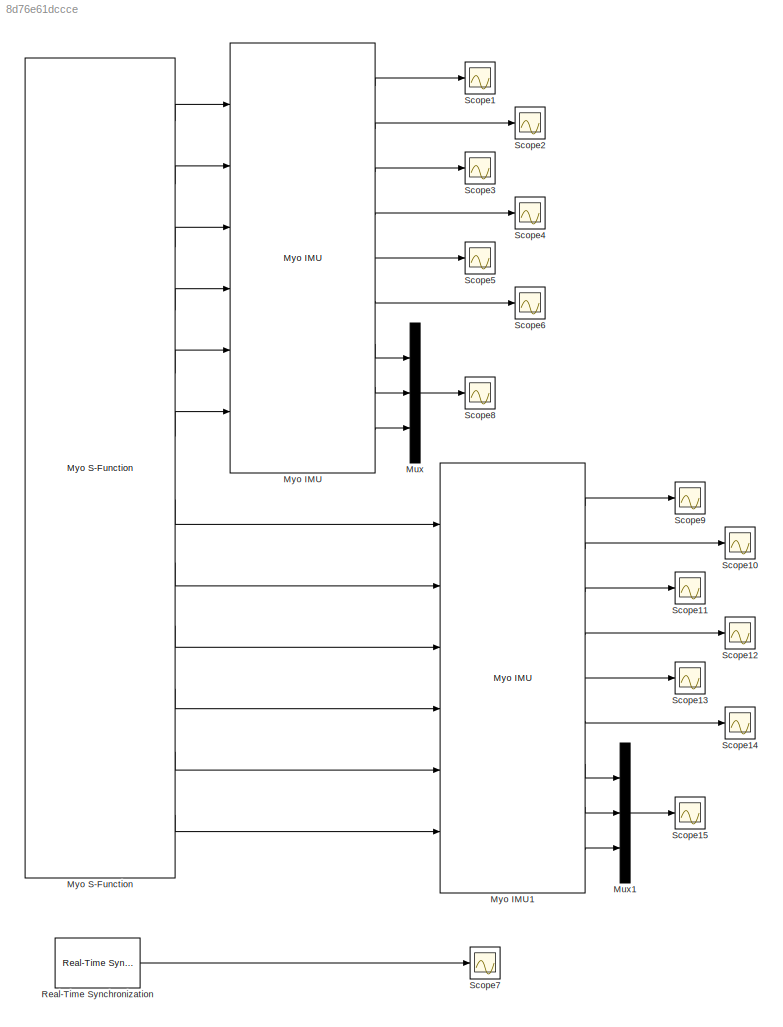
MODEL slx_8d76e61dccce
KIND model
BLOCK [Mux] Mux
  DisplayOption = bar
  Inputs = 3
  Ports = [3, 1]
BLOCK [Mux] Mux1
  DisplayOption = bar
  Inputs = 3
  Ports = [3, 1]
BLOCK [Reference] Myo IMU  REF=myo_lib/Myo IMU  (lib defined in slx_a57fffc76f72)
  Ports = [6, 9]
  SourceBlock = myo_lib/Myo IMU
  SourceType = SubSystem
BLOCK [Reference] Myo IMU1  REF=myo_lib/Myo IMU  (lib defined in slx_a57fffc76f72)
  Ports = [6, 9]
  SourceBlock = myo_lib/Myo IMU
  SourceType = SubSystem
BLOCK [Reference] Myo S-Function  REF=myo_lib/Myo S-Function  (lib defined in slx_a57fffc76f72)
  Ports = [0, 12]
  SourceBlock = myo_lib/Myo S-Function
  countMyos = 2
  emgEnabled = 0
BLOCK [Reference] Real-Time Synchronization  REF=rtwinlib/Real-Time
Synchronization
  MaxMissedTicks = 50
  Ports = [0, 1]
  SampleTime = 0.04
  ShowMissedTicks = on
  SourceBlock = rtwinlib/Real-Time\nSynchronization
  SourceType = RTWin Real-Time Synchronization
  YieldWhenWaiting = on
BLOCK [Scope] Scope1
  DataFormat = StructureWithTime
  Floating = off
  NumInputPorts = 1
  Ports = [1]
  SampleTime = 0
  ShowLegends = off
  TimeRange = 10
  YMax = 150
  YMin = -150
  ZoomMode = yonly
BLOCK [Scope] Scope10
  DataFormat = StructureWithTime
  Floating = off
  NumInputPorts = 1
  Ports = [1]
  SampleTime = 0
  SaveName = ScopeData8
  ShowLegends = off
  TimeRange = 10
  YMax = 150
  YMin = -150
  ZoomMode = yonly
BLOCK [Scope] Scope11
  DataFormat = StructureWithTime
  Floating = off
  NumInputPorts = 1
  Ports = [1]
  SampleTime = 0
  SaveName = ScopeData9
  ShowLegends = off
  TimeRange = 10
  YMax = 150
  YMin = -150
  ZoomMode = yonly
BLOCK [Scope] Scope12
  DataFormat = StructureWithTime
  Floating = off
  NumInputPorts = 1
  Ports = [1]
  SampleTime = 0
  SaveName = ScopeData10
  ShowLegends = off
  TimeRange = 10
  YMax = 150
  YMin = -150
  ZoomMode = yonly
BLOCK [Scope] Scope13
  DataFormat = StructureWithTime
  Floating = off
  NumInputPorts = 1
  Ports = [1]
  SampleTime = 0
  SaveName = ScopeData11
  ShowLegends = off
  TimeRange = 10
  YMax = 150
  YMin = -150
  ZoomMode = yonly
BLOCK [Scope] Scope14
  DataFormat = StructureWithTime
  Floating = off
  NumInputPorts = 1
  Ports = [1]
  SampleTime = 0
  SaveName = ScopeData12
  ShowLegends = off
  TimeRange = 10
  YMax = 150
  YMin = -150
  ZoomMode = yonly
BLOCK [Scope] Scope15
  DataFormat = StructureWithTime
  Floating = off
  NumInputPorts = 1
  Ports = [1]
  SampleTime = 0
  SaveName = ScopeData13
  ShowLegends = off
  TimeRange = 10
  YMax = 150
  YMin = -150
  ZoomMode = yonly
BLOCK [Scope] Scope2
  DataFormat = StructureWithTime
  Floating = off
  NumInputPorts = 1
  Ports = [1]
  SampleTime = 0
  SaveName = ScopeData1
  ShowLegends = off
  TimeRange = 10
  YMax = 150
  YMin = -150
  ZoomMode = yonly
BLOCK [Scope] Scope3
  DataFormat = StructureWithTime
  Floating = off
  NumInputPorts = 1
  Ports = [1]
  SampleTime = 0
  SaveName = ScopeData2
  ShowLegends = off
  TimeRange = 10
  YMax = 150
  YMin = -150
  ZoomMode = yonly
BLOCK [Scope] Scope4
  DataFormat = StructureWithTime
  Floating = off
  NumInputPorts = 1
  Ports = [1]
  SampleTime = 0
  SaveName = ScopeData3
  ShowLegends = off
  TimeRange = 10
  YMax = 150
  YMin = -150
  ZoomMode = yonly
BLOCK [Scope] Scope5
  DataFormat = StructureWithTime
  Floating = off
  NumInputPorts = 1
  Ports = [1]
  SampleTime = 0
  SaveName = ScopeData4
  ShowLegends = off
  TimeRange = 10
  YMax = 150
  YMin = -150
  ZoomMode = yonly
BLOCK [Scope] Scope6
  DataFormat = StructureWithTime
  Floating = off
  NumInputPorts = 1
  Ports = [1]
  SampleTime = 0
  SaveName = ScopeData5
  ShowLegends = off
  TimeRange = 10
  YMax = 150
  YMin = -150
  ZoomMode = yonly
BLOCK [Scope] Scope7
  DataFormat = StructureWithTime
  Floating = off
  NumInputPorts = 1
  Ports = [1]
  SampleTime = 0
  SaveName = ScopeData7
  ShowLegends = off
  TimeRange = 10
  YMax = 150
  YMin = -150
  ZoomMode = yonly
BLOCK [Scope] Scope8
  DataFormat = StructureWithTime
  Floating = off
  NumInputPorts = 1
  Ports = [1]
  SampleTime = 0
  SaveName = ScopeData6
  ShowLegends = off
  TimeRange = 10
  YMax = 150
  YMin = -150
  ZoomMode = yonly
BLOCK [Scope] Scope9
  DataFormat = StructureWithTime
  Floating = off
  NumInputPorts = 1
  Ports = [1]
  SampleTime = 0
  SaveName = ScopeData14
  ShowLegends = off
  TimeRange = 10
  YMax = 150
  YMin = -150
  ZoomMode = yonly
LINE Mux1:1 -> Scope15:1
LINE Mux:1 -> Scope8:1
LINE Myo IMU1:1 -> Scope9:1
LINE Myo IMU1:2 -> Scope10:1
LINE Myo IMU1:3 -> Scope11:1
LINE Myo IMU1:4 -> Scope12:1
LINE Myo IMU1:5 -> Scope13:1
LINE Myo IMU1:6 -> Scope14:1
LINE Myo IMU1:7 -> Mux1:1
LINE Myo IMU1:8 -> Mux1:2
LINE Myo IMU1:9 -> Mux1:3
LINE Myo IMU:1 -> Scope1:1
LINE Myo IMU:2 -> Scope2:1
LINE Myo IMU:3 -> Scope3:1
LINE Myo IMU:4 -> Scope4:1
LINE Myo IMU:5 -> Scope5:1
LINE Myo IMU:6 -> Scope6:1
LINE Myo IMU:7 -> Mux:1
LINE Myo IMU:8 -> Mux:2
LINE Myo IMU:9 -> Mux:3
LINE Myo S-Function:1 -> Myo IMU:1
LINE Myo S-Function:10 -> Myo IMU1:4
LINE Myo S-Function:11 -> Myo IMU1:5
LINE Myo S-Function:12 -> Myo IMU1:6
LINE Myo S-Function:2 -> Myo IMU:2
LINE Myo S-Function:3 -> Myo IMU:3
LINE Myo S-Function:4 -> Myo IMU:4
LINE Myo S-Function:5 -> Myo IMU:5
LINE Myo S-Function:6 -> Myo IMU:6
LINE Myo S-Function:7 -> Myo IMU1:1
LINE Myo S-Function:8 -> Myo IMU1:2
LINE Myo S-Function:9 -> Myo IMU1:3
LINE Real-Time Synchronization:1 -> Scope7:1
